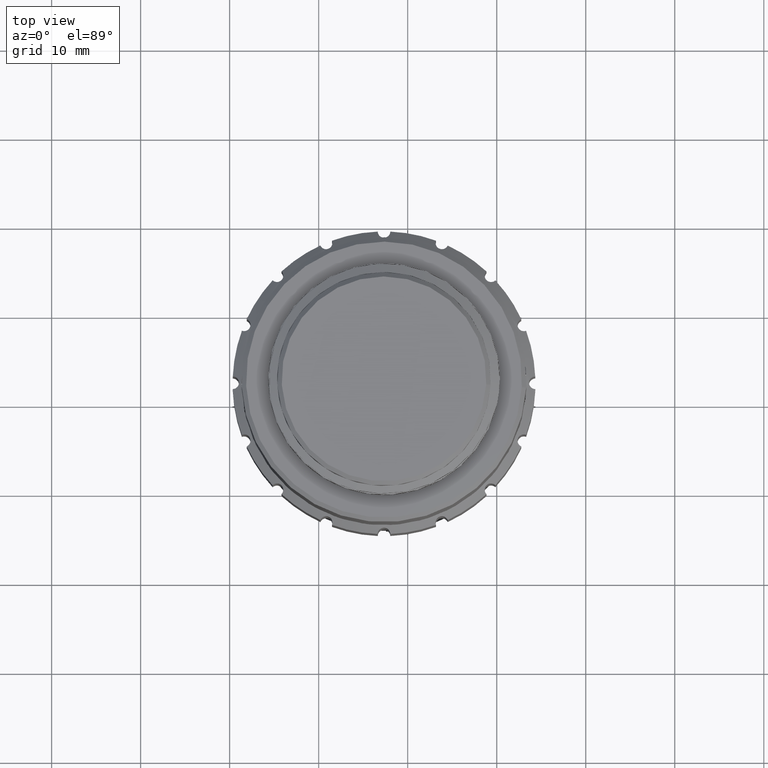
[diagram: clean part render]
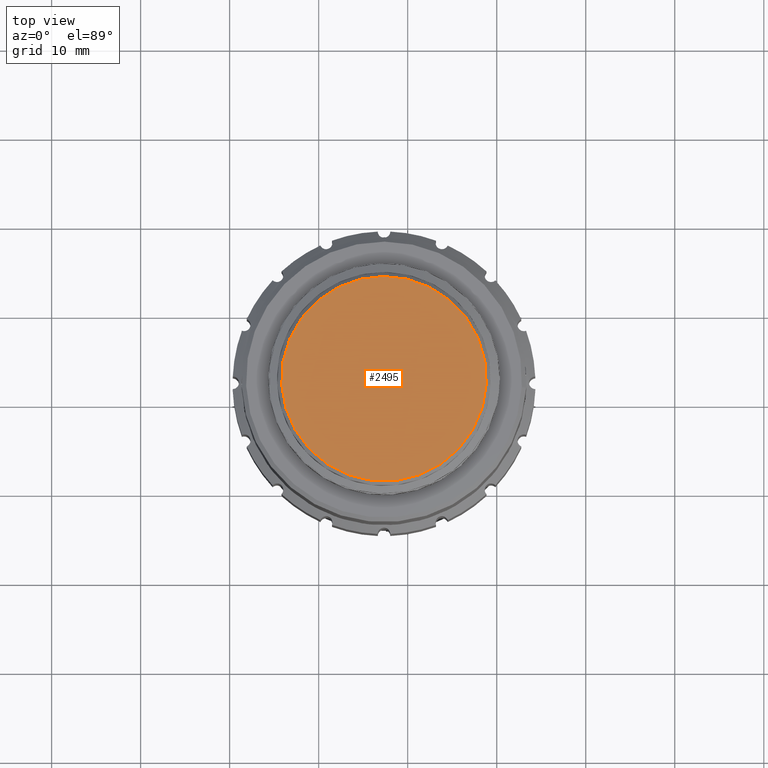
[diagram: same view with one face highlighted and labeled with its STEP entity id]
A machine part, top view. The second image highlights one B-rep face of the part: STEP entity #2495.
In plain terms, the highlighted planar face has unit normal (0, 0, 1).
Its self-contained STEP definition (entity closure, byte-faithful):
#835 = AXIS2_PLACEMENT_3D ( 'NONE', #5217, #10584, #2560 ) ;
#1746 = DIRECTION ( 'NONE',  ( 0.9984986589527603540, -0.05477616333350738415, 0.000000000000000000 ) ) ;
#2495 = ADVANCED_FACE ( 'NONE', ( #14624 ), #6537, .T. ) ;
#2560 = DIRECTION ( 'NONE',  ( 0.9984986589527603540, -0.05477616333350730782, 0.000000000000000000 ) ) ;
#3526 = CARTESIAN_POINT ( 'NONE',  ( -111.1802995289275344, 21.38537695410330386, 32.09225607790694568 ) ) ;
#5217 = CARTESIAN_POINT ( 'NONE',  ( -122.6630341068842824, 22.01530283243863906, 32.09225607790694568 ) ) ;
#6537 = PLANE ( 'NONE',  #835 ) ;
#6963 = EDGE_CURVE ( 'NONE', #7508, #7508, #10320, .T. ) ;
#7508 = VERTEX_POINT ( 'NONE', #3526 ) ;
#7509 = AXIS2_PLACEMENT_3D ( 'NONE', #9780, #13824, #1746 ) ;
#8084 = ORIENTED_EDGE ( 'NONE', *, *, #6963, .T. ) ;
#9780 = CARTESIAN_POINT ( 'NONE',  ( -122.6630341068842824, 22.01530283243863906, 32.09225607790694568 ) ) ;
#10320 = CIRCLE ( 'NONE', #7509, 11.50000000000000178 ) ;
#10584 = DIRECTION ( 'NONE',  ( 0.000000000000000000, 0.000000000000000000, 1.000000000000000000 ) ) ;
#13824 = DIRECTION ( 'NONE',  ( 0.000000000000000000, 0.000000000000000000, 1.000000000000000000 ) ) ;
#14624 = FACE_OUTER_BOUND ( 'NONE', #15330, .T. ) ;
#15330 = EDGE_LOOP ( 'NONE', ( #8084 ) ) ;